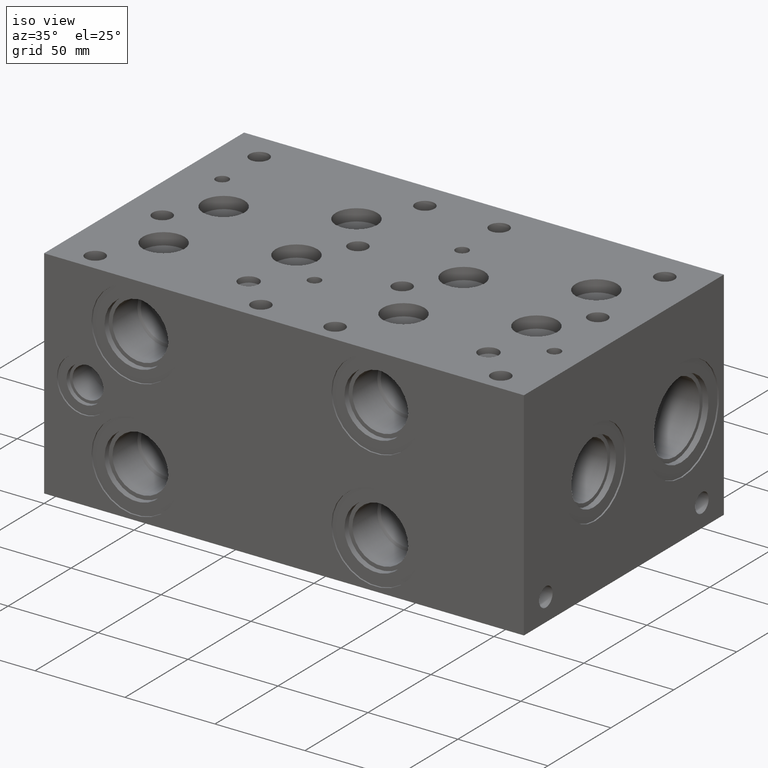
[diagram: clean part render]
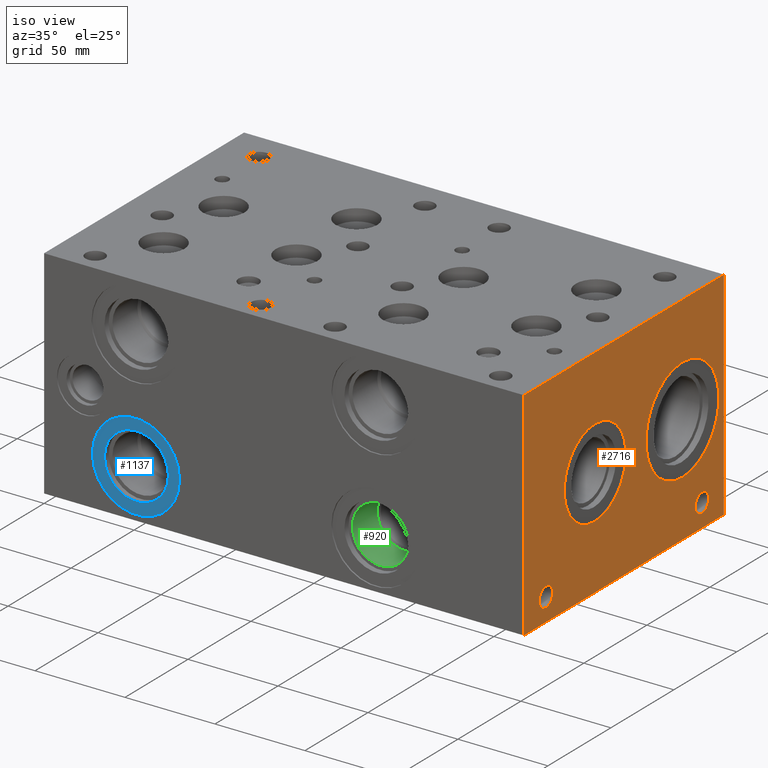
[diagram: same view with three faces highlighted in distinct colors, each labeled with its STEP entity id]
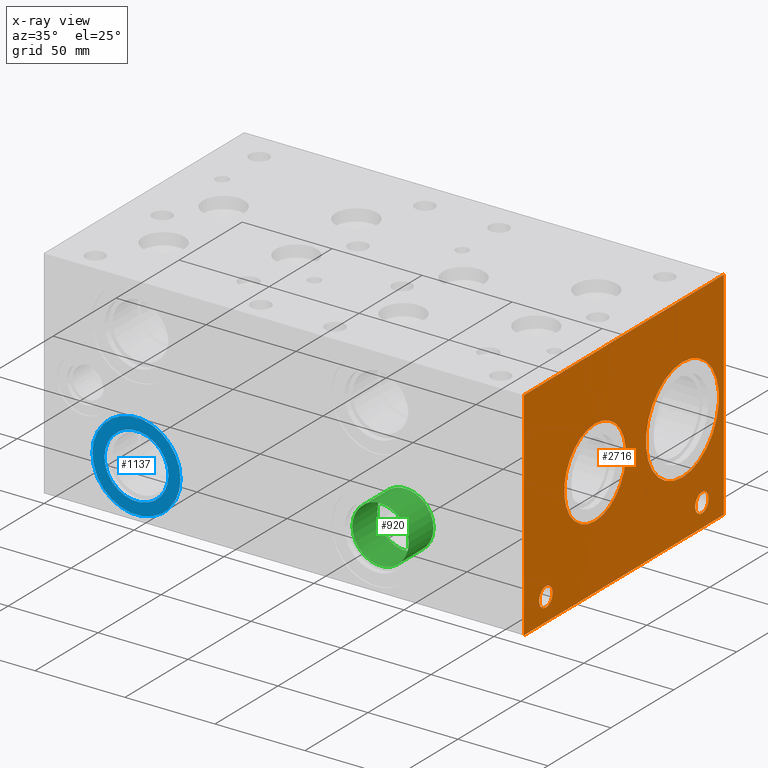
[diagram: x-ray of the same camera — body ghosted, the three highlighted faces saturated]
A machine part, iso view with three faces highlighted in distinct colors.
The next image is the same camera in x-ray (body ghosted, the three faces saturated) — at least one of them is partly hidden behind the body in this view.
Their STEP definitions:

[orange] entity #2716 — the highlighted planar face has unit normal (1, 0, 0).
#210=CARTESIAN_POINT('',(266.700000000000050,125.831599999999990,31.343600000000006));
#211=VERTEX_POINT('',#210);
#212=CARTESIAN_POINT('',(266.700000000000050,125.831599999999990,60.325000000000003));
#213=DIRECTION('',(-1.0,0.0,0.0));
#214=DIRECTION('',(0.0,0.0,-1.0));
#215=AXIS2_PLACEMENT_3D('',#212,#213,#214);
#216=CIRCLE('',#215,28.981400000000001);
#217=EDGE_CURVE('',#211,#211,#216,.T.);
#367=CARTESIAN_POINT('',(266.700000000000050,56.489600000000010,35.839399999999998));
#368=VERTEX_POINT('',#367);
#369=CARTESIAN_POINT('',(266.700000000000050,56.489600000000010,60.325000000000003));
#370=DIRECTION('',(-1.0,0.0,0.0));
#371=DIRECTION('',(0.0,0.0,-1.0));
#372=AXIS2_PLACEMENT_3D('',#369,#370,#371);
#373=CIRCLE('',#372,24.485600000000005);
#374=EDGE_CURVE('',#368,#368,#373,.T.);
#404=CARTESIAN_POINT('',(266.700000000000050,141.287499999999990,7.340600000000000));
#405=VERTEX_POINT('',#404);
#406=CARTESIAN_POINT('',(266.700000000000050,141.287499999999990,12.699999999999999));
#407=DIRECTION('',(-1.0,0.0,0.0));
#408=DIRECTION('',(0.0,0.0,-1.0));
#409=AXIS2_PLACEMENT_3D('',#406,#407,#408);
#410=CIRCLE('',#409,5.359400000000000);
#411=EDGE_CURVE('',#405,#405,#410,.T.);
#441=CARTESIAN_POINT('',(266.700000000000050,17.462499999999999,7.340600000000000));
#442=VERTEX_POINT('',#441);
#443=CARTESIAN_POINT('',(266.700000000000050,17.462499999999999,12.699999999999999));
#444=DIRECTION('',(-1.0,0.0,0.0));
#445=DIRECTION('',(0.0,0.0,-1.0));
#446=AXIS2_PLACEMENT_3D('',#443,#444,#445);
#447=CIRCLE('',#446,5.359400000000000);
#448=EDGE_CURVE('',#442,#442,#447,.T.);
#2648=CARTESIAN_POINT('',(266.700000000000050,158.750000000000000,120.650000000000010));
#2649=VERTEX_POINT('',#2648);
#2656=CARTESIAN_POINT('',(266.700000000000050,158.750000000000000,0.0));
#2657=VERTEX_POINT('',#2656);
#2658=CARTESIAN_POINT('',(266.700000000000050,158.750000000000000,0.0));
#2659=DIRECTION('',(0.0,0.0,1.0));
#2660=VECTOR('',#2659,120.650000000000010);
#2661=LINE('',#2658,#2660);
#2662=EDGE_CURVE('',#2657,#2649,#2661,.T.);
#2674=CARTESIAN_POINT('',(266.700000000000050,158.750000000000000,0.0));
#2675=DIRECTION('',(1.0,0.0,0.0));
#2676=DIRECTION('',(0.0,0.0,-1.0));
#2677=AXIS2_PLACEMENT_3D('',#2674,#2675,#2676);
#2678=PLANE('',#2677);
#2679=CARTESIAN_POINT('',(266.700000000000050,0.0,120.650000000000010));
#2680=VERTEX_POINT('',#2679);
#2681=CARTESIAN_POINT('',(266.700000000000050,158.750000000000000,120.650000000000010));
#2682=DIRECTION('',(0.0,-1.0,0.0));
#2683=VECTOR('',#2682,158.750000000000000);
#2684=LINE('',#2681,#2683);
#2685=EDGE_CURVE('',#2649,#2680,#2684,.T.);
#2686=ORIENTED_EDGE('',*,*,#2685,.T.);
#2687=CARTESIAN_POINT('',(266.700000000000050,0.0,0.0));
#2688=VERTEX_POINT('',#2687);
#2689=CARTESIAN_POINT('',(266.700000000000050,0.0,0.0));
#2690=DIRECTION('',(0.0,0.0,1.0));
#2691=VECTOR('',#2690,120.650000000000010);
#2692=LINE('',#2689,#2691);
#2693=EDGE_CURVE('',#2688,#2680,#2692,.T.);
#2694=ORIENTED_EDGE('',*,*,#2693,.F.);
#2695=CARTESIAN_POINT('',(266.700000000000050,0.0,0.0));
#2696=DIRECTION('',(0.0,1.0,0.0));
#2697=VECTOR('',#2696,158.750000000000000);
#2698=LINE('',#2695,#2697);
#2699=EDGE_CURVE('',#2688,#2657,#2698,.T.);
#2700=ORIENTED_EDGE('',*,*,#2699,.T.);
#2701=ORIENTED_EDGE('',*,*,#2662,.T.);
#2702=EDGE_LOOP('',(#2686,#2694,#2700,#2701));
#2703=FACE_OUTER_BOUND('',#2702,.T.);
#2704=ORIENTED_EDGE('',*,*,#217,.T.);
#2705=EDGE_LOOP('',(#2704));
#2706=FACE_BOUND('',#2705,.T.);
#2707=ORIENTED_EDGE('',*,*,#374,.T.);
#2708=EDGE_LOOP('',(#2707));
#2709=FACE_BOUND('',#2708,.T.);
#2710=ORIENTED_EDGE('',*,*,#411,.T.);
#2711=EDGE_LOOP('',(#2710));
#2712=FACE_BOUND('',#2711,.T.);
#2713=ORIENTED_EDGE('',*,*,#448,.T.);
#2714=EDGE_LOOP('',(#2713));
#2715=FACE_BOUND('',#2714,.T.);
#2716=ADVANCED_FACE('',(#2703,#2706,#2709,#2712,#2715),#2678,.T.);

[blue] entity #1137 — the highlighted planar face has unit normal (0, 1, 0).
#1103=CARTESIAN_POINT('',(68.554599999999994,0.787400000000000,26.987500000000004));
#1104=VERTEX_POINT('',#1103);
#1105=CARTESIAN_POINT('',(50.799999999999997,0.787400000000000,26.987500000000004));
#1106=DIRECTION('',(0.0,-1.0,0.0));
#1107=DIRECTION('',(1.0,0.0,0.0));
#1108=AXIS2_PLACEMENT_3D('',#1105,#1106,#1107);
#1109=CIRCLE('',#1108,17.754599999999996);
#1110=EDGE_CURVE('',#1104,#1104,#1109,.T.);
#1118=CARTESIAN_POINT('',(71.920099999999991,0.787400000000000,26.987500000000004));
#1119=DIRECTION('',(0.0,1.0,0.0));
#1120=DIRECTION('',(0.0,0.0,1.0));
#1121=AXIS2_PLACEMENT_3D('',#1118,#1119,#1120);
#1122=PLANE('',#1121);
#1123=CARTESIAN_POINT('',(75.285600000000002,0.787400000000000,26.987500000000004));
#1124=VERTEX_POINT('',#1123);
#1125=CARTESIAN_POINT('',(50.799999999999997,0.787400000000000,26.987500000000004));
#1126=DIRECTION('',(0.0,-1.0,0.0));
#1127=DIRECTION('',(1.0,0.0,0.0));
#1128=AXIS2_PLACEMENT_3D('',#1125,#1126,#1127);
#1129=CIRCLE('',#1128,24.485600000000005);
#1130=EDGE_CURVE('',#1124,#1124,#1129,.T.);
#1131=ORIENTED_EDGE('',*,*,#1130,.T.);
#1132=EDGE_LOOP('',(#1131));
#1133=FACE_OUTER_BOUND('',#1132,.T.);
#1134=ORIENTED_EDGE('',*,*,#1110,.F.);
#1135=EDGE_LOOP('',(#1134));
#1136=FACE_BOUND('',#1135,.T.);
#1137=ADVANCED_FACE('',(#1133,#1136),#1122,.F.);

[green] entity #920 — the highlighted cylindrical surface (bore or boss wall) has radius 15.6337 mm, axis along (0, -1, 0).
#886=CARTESIAN_POINT('',(199.783700000000010,23.816079100000000,26.987500000000004));
#887=VERTEX_POINT('',#886);
#888=CARTESIAN_POINT('',(184.150000000000030,23.816079100000000,26.987500000000004));
#889=DIRECTION('',(0.0,-1.0,0.0));
#890=DIRECTION('',(1.0,0.0,0.0));
#891=AXIS2_PLACEMENT_3D('',#888,#889,#890);
#892=CIRCLE('',#891,15.633699999999990);
#893=EDGE_CURVE('',#887,#887,#892,.T.);
#901=CARTESIAN_POINT('',(184.150000000000030,13.940039550000002,26.987500000000004));
#902=DIRECTION('',(0.0,-1.0,0.0));
#903=DIRECTION('',(1.0,0.0,0.0));
#904=AXIS2_PLACEMENT_3D('',#901,#902,#903);
#905=CYLINDRICAL_SURFACE('',#904,15.633699999999990);
#906=CARTESIAN_POINT('',(199.783700000000010,4.064000000000000,26.987500000000004));
#907=VERTEX_POINT('',#906);
#908=CARTESIAN_POINT('',(184.150000000000030,4.064000000000000,26.987500000000004));
#909=DIRECTION('',(0.0,-1.0,0.0));
#910=DIRECTION('',(1.0,0.0,0.0));
#911=AXIS2_PLACEMENT_3D('',#908,#909,#910);
#912=CIRCLE('',#911,15.633699999999990);
#913=EDGE_CURVE('',#907,#907,#912,.T.);
#914=ORIENTED_EDGE('',*,*,#913,.T.);
#915=EDGE_LOOP('',(#914));
#916=FACE_OUTER_BOUND('',#915,.T.);
#917=ORIENTED_EDGE('',*,*,#893,.F.);
#918=EDGE_LOOP('',(#917));
#919=FACE_BOUND('',#918,.T.);
#920=ADVANCED_FACE('',(#916,#919),#905,.F.);